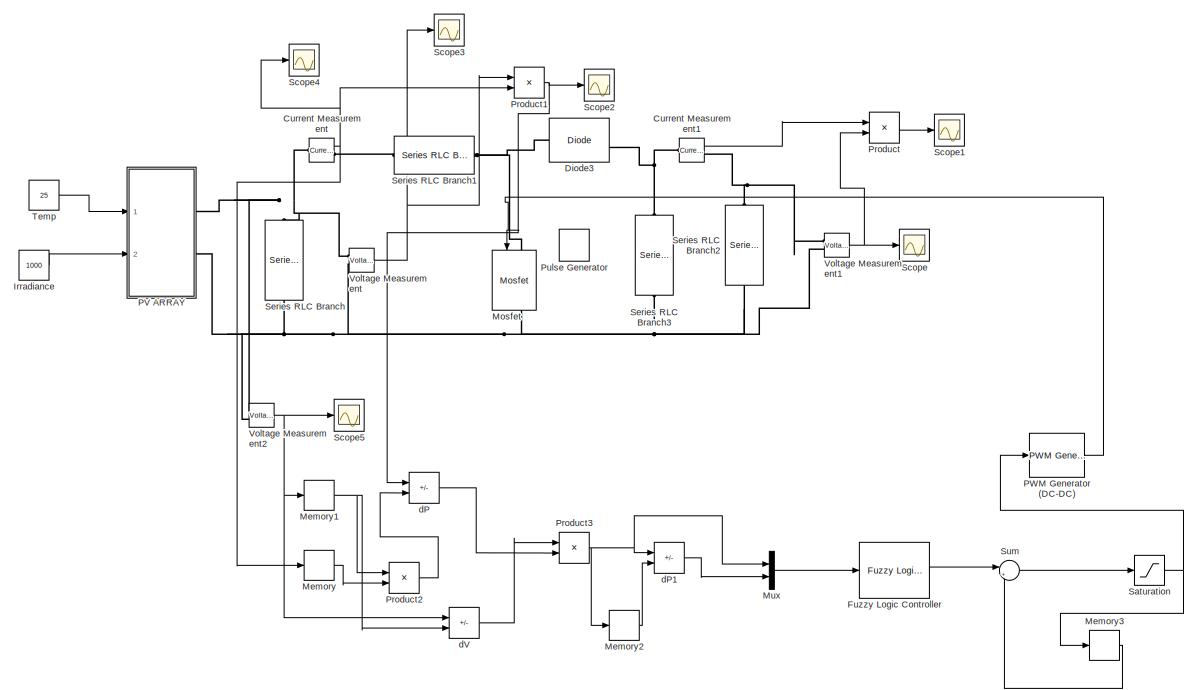
[diagram: root canvas - part 1/2, top left region]
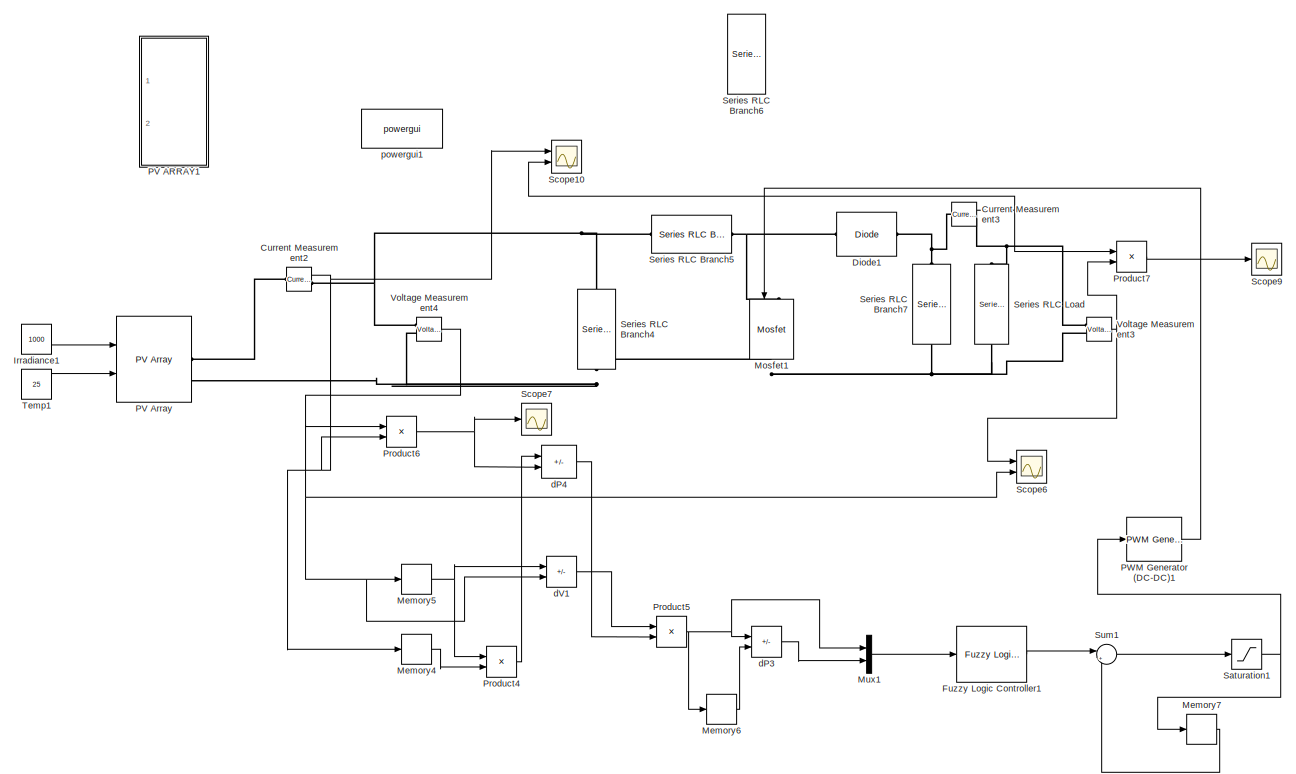
[diagram: root canvas - part 2/2, bottom center region]
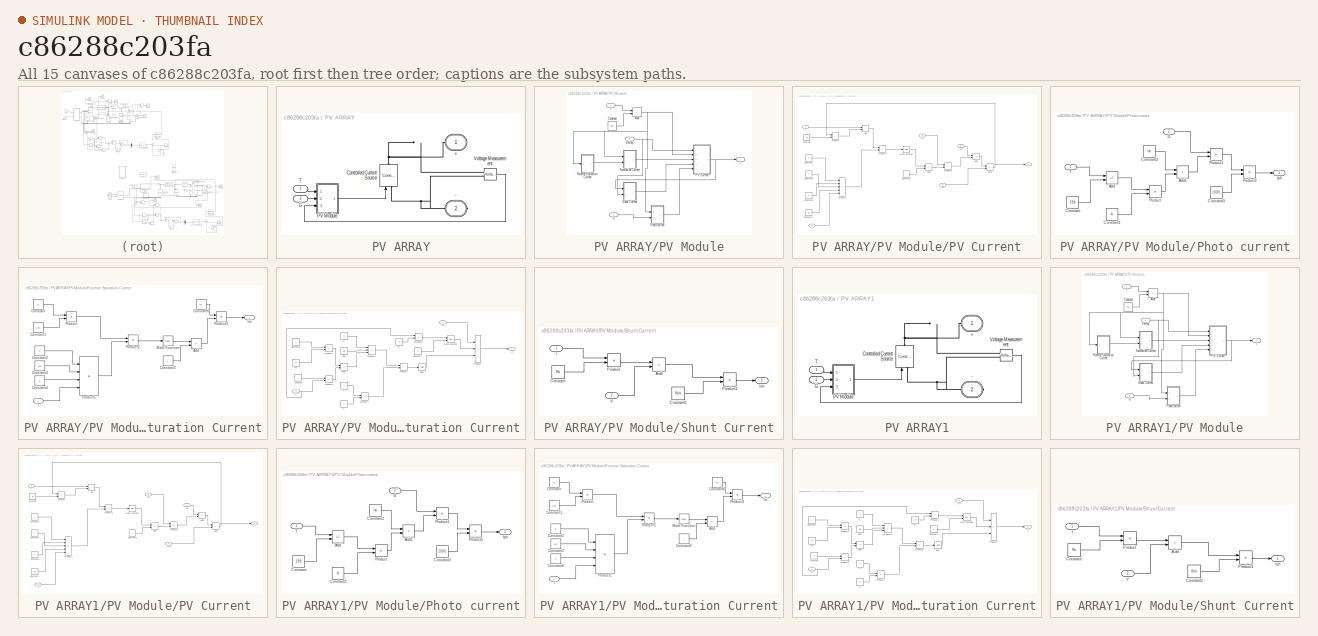
[diagram: thumbnail index - all 15 canvases of the model, root first then tree order]
MODEL slx_c86288c203fa
KIND model
CONFIG AbsTol = auto
CONFIG EnableMultiTasking = off
CONFIG FixedStep = 1e-6
CONFIG MaxStep = auto
CONFIG MinStep = auto
CONFIG RelTol = 1e-3
CONFIG SampleTimeConstraint = Unconstrained
CONFIG Solver = FixedStepAuto
CONFIG SolverName = FixedStepAuto
CONFIG StartTime = 0.0
CONFIG StopTime = 0.5
BLOCK [Reference] Current Measurement  REF=powerlib/Measurements/Current Measurement
  Commented = on
  Ports = [0, 1, 0, 0, 0, 1, 1]
  SourceBlock = powerlib/Measurements/Current Measurement
  SourceProductBaseCode = PS
  SourceType = Current Measurement
  UserDataPersistent = on
BLOCK [Reference] Current Measurement1  REF=powerlib/Measurements/Current Measurement
  Commented = on
  Ports = [0, 1, 0, 0, 0, 1, 1]
  SourceBlock = powerlib/Measurements/Current Measurement
  SourceProductBaseCode = PS
  SourceType = Current Measurement
  UserDataPersistent = on
BLOCK [Reference] Current Measurement2  REF=powerlib/Measurements/Current Measurement
  Ports = [0, 1, 0, 0, 0, 1, 1]
  SourceBlock = powerlib/Measurements/Current Measurement
  SourceProductBaseCode = PS
  SourceType = Current Measurement
  UserDataPersistent = on
BLOCK [Reference] Current Measurement3  REF=powerlib/Measurements/Current Measurement
  Ports = [0, 1, 0, 0, 0, 1, 1]
  SourceBlock = powerlib/Measurements/Current Measurement
  SourceProductBaseCode = PS
  SourceType = Current Measurement
  UserDataPersistent = on
BLOCK [Reference] Diode1  REF=powerlib/Power
Electronics/Diode
  Ports = [0, 0, 0, 0, 0, 1, 1]
  SourceBlock = powerlib/Power\nElectronics/Diode
  SourceProductBaseCode = PS
  SourceType = Diode
BLOCK [Reference] Diode3  REF=powerlib/Power
Electronics/Diode
  Commented = on
  Ports = [0, 1, 0, 0, 0, 1, 1]
  SourceBlock = powerlib/Power\nElectronics/Diode
  SourceProductBaseCode = PS
  SourceType = Diode
BLOCK [Reference] Fuzzy Logic Controller  REF=fuzblock/Fuzzy Logic   (lib defined in mdl_858b3b3e7478)
Controller
  Commented = on
  Ports = [1, 1]
  SourceBlock = fuzblock/Fuzzy Logic \nController
  SourceProductBaseCode = FL
  SourceType = Fuzzy Inference System
BLOCK [Reference] Fuzzy Logic Controller1  REF=fuzblock/Fuzzy Logic   (lib defined in mdl_858b3b3e7478)
Controller
  Ports = [1, 1]
  SourceBlock = fuzblock/Fuzzy Logic \nController
  SourceProductBaseCode = FL
  SourceType = Fuzzy Inference System
BLOCK [Constant] Irradiance
  Commented = on
  Value = 1000
BLOCK [Constant] Irradiance1
  Value = 1000
BLOCK [Memory] Memory
  Commented = on
BLOCK [Memory] Memory1
  Commented = on
BLOCK [Memory] Memory2
  Commented = on
BLOCK [Memory] Memory3
  Commented = on
BLOCK [Memory] Memory4
BLOCK [Memory] Memory5
BLOCK [Memory] Memory6
BLOCK [Memory] Memory7
BLOCK [Reference] Mosfet  REF=powerlib/Power
Electronics/Mosfet
  Commented = on
  NameLocation = left
  Ports = [1, 1, 0, 0, 0, 1, 1]
  SourceBlock = powerlib/Power\nElectronics/Mosfet
  SourceProductBaseCode = PS
  SourceType = Mosfet
BLOCK [Reference] Mosfet1  REF=powerlib/Power
Electronics/Mosfet
  NameLocation = left
  Ports = [1, 0, 0, 0, 0, 1, 1]
  SourceBlock = powerlib/Power\nElectronics/Mosfet
  SourceProductBaseCode = PS
  SourceType = Mosfet
BLOCK [Mux] Mux
  Commented = on
  DisplayOption = bar
  Inputs = 2
  Ports = [2, 1]
BLOCK [Mux] Mux1
  DisplayOption = bar
  Inputs = 2
  Ports = [2, 1]
BLOCK [SubSystem] PV ARRAY
  Commented = on
  Ports = [2, 0, 0, 0, 0, 0, 2]
  RequestExecContextInheritance = off
BLOCK [PMIOPort] PV ARRAY/+
  NameLocation = top
  Side = Right
BLOCK [PMIOPort] PV ARRAY/-
  NameLocation = top
  Port = 2
  Side = Right
BLOCK [Reference] PV ARRAY/Controlled Current Source  REF=powerlib/Electrical
Sources/Controlled Current Source
  NameLocation = right
  Ports = [1, 0, 0, 0, 0, 1, 1]
  SourceBlock = powerlib/Electrical\nSources/Controlled Current Source
  SourceProductBaseCode = PS
  SourceType = Controlled Current Source
BLOCK [Inport] PV ARRAY/G
  Port = 2
BLOCK [SubSystem] PV ARRAY/PV Module
  Ports = [3, 1]
  RequestExecContextInheritance = off
BLOCK [Sum] PV ARRAY/PV Module/Add
  IconShape = rectangular
  Ports = [2, 1]
BLOCK [Constant] PV ARRAY/PV Module/Constant
  Value = 273
BLOCK [Inport] PV ARRAY/PV Module/G
  Port = 2
BLOCK [Outport] PV ARRAY/PV Module/I
BLOCK [SubSystem] PV ARRAY/PV Module/PV Current
  Ports = [5, 1]
  RequestExecContextInheritance = off
BLOCK [Sum] PV ARRAY/PV Module/PV Current/Add
  IconShape = rectangular
  Ports = [2, 1]
BLOCK [Sum] PV ARRAY/PV Module/PV Current/Add1
  IconShape = rectangular
  Inputs = +-
  Ports = [2, 1]
BLOCK [Sum] PV ARRAY/PV Module/PV Current/Add2
  IconShape = rectangular
  Inputs = +-
  Ports = [2, 1]
BLOCK [Sum] PV ARRAY/PV Module/PV Current/Add3
  IconShape = rectangular
  Inputs = +-
  Ports = [2, 1]
BLOCK [Constant] PV ARRAY/PV Module/PV Current/Constant
  Value = Rs
BLOCK [Constant] PV ARRAY/PV Module/PV Current/Constant1
  Value = q
BLOCK [Constant] PV ARRAY/PV Module/PV Current/Constant2
  Value = n
BLOCK [Constant] PV ARRAY/PV Module/PV Current/Constant3
  Value = k
BLOCK [Constant] PV ARRAY/PV Module/PV Current/Constant4
  Value = Ns
BLOCK [Constant] PV ARRAY/PV Module/PV Current/Constant5
BLOCK [Outport] PV ARRAY/PV Module/PV Current/I
BLOCK [Inport] PV ARRAY/PV Module/PV Current/I0
  Port = 3
BLOCK [Inport] PV ARRAY/PV Module/PV Current/Iph
  Port = 5
BLOCK [Inport] PV ARRAY/PV Module/PV Current/Ish
  Port = 4
BLOCK [Math] PV ARRAY/PV Module/PV Current/Math Function
  Ports = [1, 1]
BLOCK [Product] PV ARRAY/PV Module/PV Current/Product
  Ports = [2, 1]
BLOCK [Product] PV ARRAY/PV Module/PV Current/Product1
  Inputs = *////
  Ports = [5, 1]
BLOCK [Product] PV ARRAY/PV Module/PV Current/Product2
  Ports = [2, 1]
BLOCK [Product] PV ARRAY/PV Module/PV Current/Product3
  Ports = [2, 1]
BLOCK [Inport] PV ARRAY/PV Module/PV Current/T
  Port = 2
BLOCK [Inport] PV ARRAY/PV Module/PV Current/V
BLOCK [SubSystem] PV ARRAY/PV Module/Photo current
  Ports = [2, 1]
  RequestExecContextInheritance = off
BLOCK [Sum] PV ARRAY/PV Module/Photo current/Add
  IconShape = rectangular
  Inputs = +-
  Ports = [2, 1]
BLOCK [Sum] PV ARRAY/PV Module/Photo current/Add1
  IconShape = rectangular
  Ports = [2, 1]
BLOCK [Constant] PV ARRAY/PV Module/Photo current/Constant
  Value = 298
BLOCK [Constant] PV ARRAY/PV Module/Photo current/Constant1
  Value = ki
BLOCK [Constant] PV ARRAY/PV Module/Photo current/Constant2
  Value = Isc
BLOCK [Constant] PV ARRAY/PV Module/Photo current/Constant3
  Value = 1000
BLOCK [Inport] PV ARRAY/PV Module/Photo current/G
  Port = 2
BLOCK [Outport] PV ARRAY/PV Module/Photo current/Iph
BLOCK [Product] PV ARRAY/PV Module/Photo current/Product
  Ports = [2, 1]
BLOCK [Product] PV ARRAY/PV Module/Photo current/Product1
  Ports = [2, 1]
BLOCK [Product] PV ARRAY/PV Module/Photo current/Product2
  Inputs = */
  Ports = [2, 1]
BLOCK [Inport] PV ARRAY/PV Module/Photo current/T
BLOCK [SubSystem] PV ARRAY/PV Module/Reverse Saturation Current
  Ports = [1, 1]
  RequestExecContextInheritance = off
BLOCK [Sum] PV ARRAY/PV Module/Reverse Saturation Current/Add
  IconShape = rectangular
  Inputs = +-
  Ports = [2, 1]
BLOCK [Constant] PV ARRAY/PV Module/Reverse Saturation Current/Constant
  Value = q
BLOCK [Constant] PV ARRAY/PV Module/Reverse Saturation Current/Constant1
  Value = Voc
BLOCK [Constant] PV ARRAY/PV Module/Reverse Saturation Current/Constant2
  Value = n
BLOCK [Constant] PV ARRAY/PV Module/Reverse Saturation Current/Constant3
  Value = Ns
BLOCK [Constant] PV ARRAY/PV Module/Reverse Saturation Current/Constant4
  Value = k
BLOCK [Constant] PV ARRAY/PV Module/Reverse Saturation Current/Constant5
BLOCK [Constant] PV ARRAY/PV Module/Reverse Saturation Current/Constant6
  Value = Isc
BLOCK [Outport] PV ARRAY/PV Module/Reverse Saturation Current/Irs
BLOCK [Math] PV ARRAY/PV Module/Reverse Saturation Current/Math Function
  Ports = [1, 1]
BLOCK [Product] PV ARRAY/PV Module/Reverse Saturation Current/Product
  Ports = [2, 1]
BLOCK [Product] PV ARRAY/PV Module/Reverse Saturation Current/Product1
  Inputs = 4
  Ports = [4, 1]
BLOCK [Product] PV ARRAY/PV Module/Reverse Saturation Current/Product2
  Inputs = */
  Ports = [2, 1]
BLOCK [Product] PV ARRAY/PV Module/Reverse Saturation Current/Product3
  Inputs = */
  Ports = [2, 1]
BLOCK [Inport] PV ARRAY/PV Module/Reverse Saturation Current/T
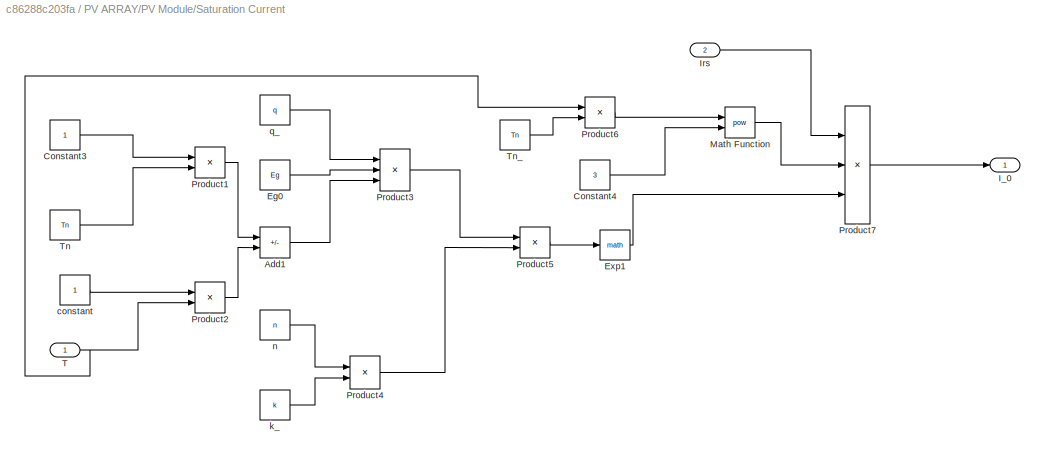
BLOCK [SubSystem] PV ARRAY/PV Module/Saturation Current
  Ports = [2, 1]
  RequestExecContextInheritance = off
BLOCK [Sum] PV ARRAY/PV Module/Saturation Current/Add1
  IconShape = rectangular
  Inputs = +-
  Ports = [2, 1]
BLOCK [Constant] PV ARRAY/PV Module/Saturation Current/Constant3
BLOCK [Constant] PV ARRAY/PV Module/Saturation Current/Constant4
  Value = 3
BLOCK [Constant] PV ARRAY/PV Module/Saturation Current/Eg0
  Value = Eg
BLOCK [Math] PV ARRAY/PV Module/Saturation Current/Exp1
  Ports = [1, 1]
BLOCK [Outport] PV ARRAY/PV Module/Saturation Current/I_0
BLOCK [Inport] PV ARRAY/PV Module/Saturation Current/Irs
  Port = 2
BLOCK [Math] PV ARRAY/PV Module/Saturation Current/Math Function
  Operator = pow
  Ports = [2, 1]
BLOCK [Product] PV ARRAY/PV Module/Saturation Current/Product1
  Inputs = */
  Ports = [2, 1]
BLOCK [Product] PV ARRAY/PV Module/Saturation Current/Product2
  Inputs = */
  Ports = [2, 1]
BLOCK [Product] PV ARRAY/PV Module/Saturation Current/Product3
  Inputs = ***
  Ports = [3, 1]
BLOCK [Product] PV ARRAY/PV Module/Saturation Current/Product4
  Inputs = **
  Ports = [2, 1]
BLOCK [Product] PV ARRAY/PV Module/Saturation Current/Product5
  Inputs = */
  Ports = [2, 1]
BLOCK [Product] PV ARRAY/PV Module/Saturation Current/Product6
  Inputs = */
  Ports = [2, 1]
BLOCK [Product] PV ARRAY/PV Module/Saturation Current/Product7
  Inputs = 3
  Ports = [3, 1]
BLOCK [Inport] PV ARRAY/PV Module/Saturation Current/T
BLOCK [Constant] PV ARRAY/PV Module/Saturation Current/Tn
  Value = Tn
BLOCK [Constant] PV ARRAY/PV Module/Saturation Current/Tn_
  Value = Tn
BLOCK [Constant] PV ARRAY/PV Module/Saturation Current/constant
BLOCK [Constant] PV ARRAY/PV Module/Saturation Current/k_
  Value = k
BLOCK [Constant] PV ARRAY/PV Module/Saturation Current/n
  Value = n
BLOCK [Constant] PV ARRAY/PV Module/Saturation Current/q_
  Value = q
BLOCK [SubSystem] PV ARRAY/PV Module/Shunt Current
  Ports = [2, 1]
  RequestExecContextInheritance = off
BLOCK [Sum] PV ARRAY/PV Module/Shunt Current/Add
  IconShape = rectangular
  Ports = [2, 1]
BLOCK [Constant] PV ARRAY/PV Module/Shunt Current/Constant
  Value = Rs
BLOCK [Constant] PV ARRAY/PV Module/Shunt Current/Constant1
  Value = Rsh
BLOCK [Inport] PV ARRAY/PV Module/Shunt Current/I
BLOCK [Outport] PV ARRAY/PV Module/Shunt Current/Ish
BLOCK [Product] PV ARRAY/PV Module/Shunt Current/Product
  Ports = [2, 1]
BLOCK [Product] PV ARRAY/PV Module/Shunt Current/Product1
  Inputs = */
  Ports = [2, 1]
BLOCK [Inport] PV ARRAY/PV Module/Shunt Current/V
  Port = 2
BLOCK [Inport] PV ARRAY/PV Module/T
BLOCK [Inport] PV ARRAY/PV Module/Varray
  Port = 3
BLOCK [Inport] PV ARRAY/T
BLOCK [Reference] PV ARRAY/Voltage Measurement  REF=powerlib/Measurements/Voltage Measurement
  Ports = [0, 1, 0, 0, 0, 2]
  SourceBlock = powerlib/Measurements/Voltage Measurement
  SourceProductBaseCode = PS
  SourceType = Voltage Measurement
  UserDataPersistent = on
BLOCK [SubSystem] PV ARRAY1
  Commented = on
  Ports = [2, 0, 0, 0, 0, 0, 2]
  RequestExecContextInheritance = off
BLOCK [PMIOPort] PV ARRAY1/+
  NameLocation = top
  Side = Right
BLOCK [PMIOPort] PV ARRAY1/-
  NameLocation = top
  Port = 2
  Side = Right
BLOCK [Reference] PV ARRAY1/Controlled Current Source  REF=powerlib/Electrical
Sources/Controlled Current Source
  NameLocation = right
  Ports = [1, 0, 0, 0, 0, 1, 1]
  SourceBlock = powerlib/Electrical\nSources/Controlled Current Source
  SourceProductBaseCode = PS
  SourceType = Controlled Current Source
BLOCK [Inport] PV ARRAY1/G
  Port = 2
BLOCK [SubSystem] PV ARRAY1/PV Module
  Ports = [3, 1]
  RequestExecContextInheritance = off
BLOCK [Sum] PV ARRAY1/PV Module/Add
  IconShape = rectangular
  Ports = [2, 1]
BLOCK [Constant] PV ARRAY1/PV Module/Constant
  Value = 273
BLOCK [Inport] PV ARRAY1/PV Module/G
  Port = 2
BLOCK [Outport] PV ARRAY1/PV Module/I
BLOCK [SubSystem] PV ARRAY1/PV Module/PV Current
  Ports = [5, 1]
  RequestExecContextInheritance = off
BLOCK [Sum] PV ARRAY1/PV Module/PV Current/Add
  IconShape = rectangular
  Ports = [2, 1]
BLOCK [Sum] PV ARRAY1/PV Module/PV Current/Add1
  IconShape = rectangular
  Inputs = +-
  Ports = [2, 1]
BLOCK [Sum] PV ARRAY1/PV Module/PV Current/Add2
  IconShape = rectangular
  Inputs = +-
  Ports = [2, 1]
BLOCK [Sum] PV ARRAY1/PV Module/PV Current/Add3
  IconShape = rectangular
  Inputs = +-
  Ports = [2, 1]
BLOCK [Constant] PV ARRAY1/PV Module/PV Current/Constant
  Value = Rs
BLOCK [Constant] PV ARRAY1/PV Module/PV Current/Constant1
  Value = q
BLOCK [Constant] PV ARRAY1/PV Module/PV Current/Constant2
  Value = n
BLOCK [Constant] PV ARRAY1/PV Module/PV Current/Constant3
  Value = k
BLOCK [Constant] PV ARRAY1/PV Module/PV Current/Constant4
  Value = Ns
BLOCK [Constant] PV ARRAY1/PV Module/PV Current/Constant5
BLOCK [Outport] PV ARRAY1/PV Module/PV Current/I
BLOCK [Inport] PV ARRAY1/PV Module/PV Current/I0
  Port = 3
BLOCK [Inport] PV ARRAY1/PV Module/PV Current/Iph
  Port = 5
BLOCK [Inport] PV ARRAY1/PV Module/PV Current/Ish
  Port = 4
BLOCK [Math] PV ARRAY1/PV Module/PV Current/Math Function
  Ports = [1, 1]
BLOCK [Product] PV ARRAY1/PV Module/PV Current/Product
  Ports = [2, 1]
BLOCK [Product] PV ARRAY1/PV Module/PV Current/Product1
  Inputs = *////
  Ports = [5, 1]
BLOCK [Product] PV ARRAY1/PV Module/PV Current/Product2
  Ports = [2, 1]
BLOCK [Product] PV ARRAY1/PV Module/PV Current/Product3
  Ports = [2, 1]
BLOCK [Inport] PV ARRAY1/PV Module/PV Current/T
  Port = 2
BLOCK [Inport] PV ARRAY1/PV Module/PV Current/V
BLOCK [SubSystem] PV ARRAY1/PV Module/Photo current
  Ports = [2, 1]
  RequestExecContextInheritance = off
BLOCK [Sum] PV ARRAY1/PV Module/Photo current/Add
  IconShape = rectangular
  Inputs = +-
  Ports = [2, 1]
BLOCK [Sum] PV ARRAY1/PV Module/Photo current/Add1
  IconShape = rectangular
  Ports = [2, 1]
BLOCK [Constant] PV ARRAY1/PV Module/Photo current/Constant
  Value = 298
BLOCK [Constant] PV ARRAY1/PV Module/Photo current/Constant1
  Value = ki
BLOCK [Constant] PV ARRAY1/PV Module/Photo current/Constant2
  Value = Isc
BLOCK [Constant] PV ARRAY1/PV Module/Photo current/Constant3
  Value = 1000
BLOCK [Inport] PV ARRAY1/PV Module/Photo current/G
  Port = 2
BLOCK [Outport] PV ARRAY1/PV Module/Photo current/Iph
BLOCK [Product] PV ARRAY1/PV Module/Photo current/Product
  Ports = [2, 1]
BLOCK [Product] PV ARRAY1/PV Module/Photo current/Product1
  Ports = [2, 1]
BLOCK [Product] PV ARRAY1/PV Module/Photo current/Product2
  Inputs = */
  Ports = [2, 1]
BLOCK [Inport] PV ARRAY1/PV Module/Photo current/T
BLOCK [SubSystem] PV ARRAY1/PV Module/Reverse Saturation Current
  Ports = [1, 1]
  RequestExecContextInheritance = off
BLOCK [Sum] PV ARRAY1/PV Module/Reverse Saturation Current/Add
  IconShape = rectangular
  Inputs = +-
  Ports = [2, 1]
BLOCK [Constant] PV ARRAY1/PV Module/Reverse Saturation Current/Constant
  Value = q
BLOCK [Constant] PV ARRAY1/PV Module/Reverse Saturation Current/Constant1
  Value = Voc
BLOCK [Constant] PV ARRAY1/PV Module/Reverse Saturation Current/Constant2
  Value = n
BLOCK [Constant] PV ARRAY1/PV Module/Reverse Saturation Current/Constant3
  Value = Ns
BLOCK [Constant] PV ARRAY1/PV Module/Reverse Saturation Current/Constant4
  Value = k
BLOCK [Constant] PV ARRAY1/PV Module/Reverse Saturation Current/Constant5
BLOCK [Constant] PV ARRAY1/PV Module/Reverse Saturation Current/Constant6
  Value = Isc
BLOCK [Outport] PV ARRAY1/PV Module/Reverse Saturation Current/Irs
BLOCK [Math] PV ARRAY1/PV Module/Reverse Saturation Current/Math Function
  Ports = [1, 1]
BLOCK [Product] PV ARRAY1/PV Module/Reverse Saturation Current/Product
  Ports = [2, 1]
BLOCK [Product] PV ARRAY1/PV Module/Reverse Saturation Current/Product1
  Inputs = 4
  Ports = [4, 1]
BLOCK [Product] PV ARRAY1/PV Module/Reverse Saturation Current/Product2
  Inputs = */
  Ports = [2, 1]
BLOCK [Product] PV ARRAY1/PV Module/Reverse Saturation Current/Product3
  Inputs = */
  Ports = [2, 1]
BLOCK [Inport] PV ARRAY1/PV Module/Reverse Saturation Current/T
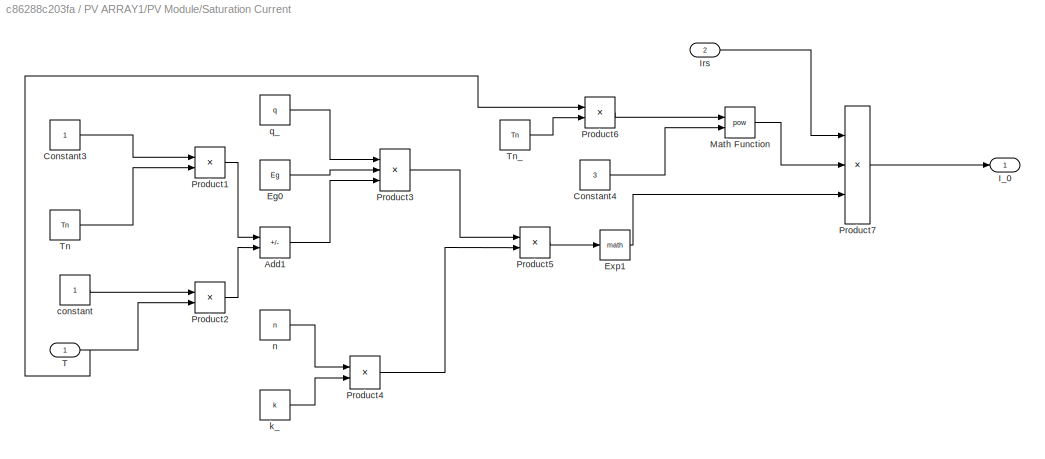
BLOCK [SubSystem] PV ARRAY1/PV Module/Saturation Current
  Ports = [2, 1]
  RequestExecContextInheritance = off
BLOCK [Sum] PV ARRAY1/PV Module/Saturation Current/Add1
  IconShape = rectangular
  Inputs = +-
  Ports = [2, 1]
BLOCK [Constant] PV ARRAY1/PV Module/Saturation Current/Constant3
BLOCK [Constant] PV ARRAY1/PV Module/Saturation Current/Constant4
  Value = 3
BLOCK [Constant] PV ARRAY1/PV Module/Saturation Current/Eg0
  Value = Eg
BLOCK [Math] PV ARRAY1/PV Module/Saturation Current/Exp1
  Ports = [1, 1]
BLOCK [Outport] PV ARRAY1/PV Module/Saturation Current/I_0
BLOCK [Inport] PV ARRAY1/PV Module/Saturation Current/Irs
  Port = 2
BLOCK [Math] PV ARRAY1/PV Module/Saturation Current/Math Function
  Operator = pow
  Ports = [2, 1]
BLOCK [Product] PV ARRAY1/PV Module/Saturation Current/Product1
  Inputs = */
  Ports = [2, 1]
BLOCK [Product] PV ARRAY1/PV Module/Saturation Current/Product2
  Inputs = */
  Ports = [2, 1]
BLOCK [Product] PV ARRAY1/PV Module/Saturation Current/Product3
  Inputs = ***
  Ports = [3, 1]
BLOCK [Product] PV ARRAY1/PV Module/Saturation Current/Product4
  Inputs = **
  Ports = [2, 1]
BLOCK [Product] PV ARRAY1/PV Module/Saturation Current/Product5
  Inputs = */
  Ports = [2, 1]
BLOCK [Product] PV ARRAY1/PV Module/Saturation Current/Product6
  Inputs = */
  Ports = [2, 1]
BLOCK [Product] PV ARRAY1/PV Module/Saturation Current/Product7
  Inputs = 3
  Ports = [3, 1]
BLOCK [Inport] PV ARRAY1/PV Module/Saturation Current/T
BLOCK [Constant] PV ARRAY1/PV Module/Saturation Current/Tn
  Value = Tn
BLOCK [Constant] PV ARRAY1/PV Module/Saturation Current/Tn_
  Value = Tn
BLOCK [Constant] PV ARRAY1/PV Module/Saturation Current/constant
BLOCK [Constant] PV ARRAY1/PV Module/Saturation Current/k_
  Value = k
BLOCK [Constant] PV ARRAY1/PV Module/Saturation Current/n
  Value = n
BLOCK [Constant] PV ARRAY1/PV Module/Saturation Current/q_
  Value = q
BLOCK [SubSystem] PV ARRAY1/PV Module/Shunt Current
  Ports = [2, 1]
  RequestExecContextInheritance = off
BLOCK [Sum] PV ARRAY1/PV Module/Shunt Current/Add
  IconShape = rectangular
  Ports = [2, 1]
BLOCK [Constant] PV ARRAY1/PV Module/Shunt Current/Constant
  Value = Rs
BLOCK [Constant] PV ARRAY1/PV Module/Shunt Current/Constant1
  Value = Rsh
BLOCK [Inport] PV ARRAY1/PV Module/Shunt Current/I
BLOCK [Outport] PV ARRAY1/PV Module/Shunt Current/Ish
BLOCK [Product] PV ARRAY1/PV Module/Shunt Current/Product
  Ports = [2, 1]
BLOCK [Product] PV ARRAY1/PV Module/Shunt Current/Product1
  Inputs = */
  Ports = [2, 1]
BLOCK [Inport] PV ARRAY1/PV Module/Shunt Current/V
  Port = 2
BLOCK [Inport] PV ARRAY1/PV Module/T
BLOCK [Inport] PV ARRAY1/PV Module/Varray
  Port = 3
BLOCK [Inport] PV ARRAY1/T
BLOCK [Reference] PV ARRAY1/Voltage Measurement  REF=powerlib/Measurements/Voltage Measurement
  Ports = [0, 1, 0, 0, 0, 2]
  SourceBlock = powerlib/Measurements/Voltage Measurement
  SourceProductBaseCode = PS
  SourceType = Voltage Measurement
  UserDataPersistent = on
BLOCK [Reference] PV Array  REF=re_lib/Solar/PV Array
  Ports = [2, 1, 0, 0, 0, 0, 2]
  SourceBlock = re_lib/Solar/PV Array
  SourceProductBaseCode = PS
  SourceType = PV array
BLOCK [Reference] PWM Generator (DC-DC)  REF=powerlib_meascontrol/Pulse & Signal
Generators/PWM Generator
(DC-DC)
  Commented = on
  Ports = [1, 1]
  SourceBlock = powerlib_meascontrol/Pulse & Signal\nGenerators/PWM Generator\n(DC-DC)
  SourceProductBaseCode = PS
  SourceType = PWM Generator (DC-DC)
BLOCK [Reference] PWM Generator (DC-DC)1  REF=powerlib_meascontrol/Pulse & Signal
Generators/PWM Generator
(DC-DC)
  Ports = [1, 1]
  SourceBlock = powerlib_meascontrol/Pulse & Signal\nGenerators/PWM Generator\n(DC-DC)
  SourceProductBaseCode = PS
  SourceType = PWM Generator (DC-DC)
BLOCK [Product] Product
  Commented = on
  Ports = [2, 1]
BLOCK [Product] Product1
  Commented = on
  Ports = [2, 1]
BLOCK [Product] Product2
  Commented = on
  Ports = [2, 1]
BLOCK [Product] Product3
  Commented = on
  Inputs = */
  Ports = [2, 1]
BLOCK [Product] Product4
  Ports = [2, 1]
BLOCK [Product] Product5
  Inputs = */
  Ports = [2, 1]
BLOCK [Product] Product6
  Ports = [2, 1]
BLOCK [Product] Product7
  Ports = [2, 1]
BLOCK [DiscretePulseGenerator] Pulse Generator
  Commented = on
  Period = 0.00004
  Ports = [0, 1]
  PulseType = Time based
  PulseWidth = 10
BLOCK [Saturate] Saturation
  Commented = on
BLOCK [Saturate] Saturation1
BLOCK [Scope] Scope
  Commented = on
  Floating = off
  NumInputPorts = 1
  Ports = [1]
  ScopeSpecificationString = Simulink.scopes.TimeScopeBlockCfg('CurrentConfiguration', extmgr.ConfigurationSet(extmgr.Configuration('Core','General UI',true),extmgr.Configuration('Core','Source UI',true),extmgr.Configuration('Sources','WiredSimulink',true),extmgr.Configuration('Visuals','Time Domain',true,'SerializedDisplays',{struct('MinYLimReal','-5.25407','MaxYLimReal','47.28664','YLabelReal','','MinYLimMag','0.00000','Max...<+1696ch>
BLOCK [Scope] Scope1
  Commented = on
  Floating = off
  NumInputPorts = 1
  Ports = [1]
  ScopeSpecificationString = Simulink.scopes.TimeScopeBlockCfg('CurrentConfiguration', extmgr.ConfigurationSet(extmgr.Configuration('Core','General UI',true),extmgr.Configuration('Core','Source UI',true),extmgr.Configuration('Sources','WiredSimulink',true,'DataLoggingVariableName','ScopeData1'),extmgr.Configuration('Visuals','Time Domain',true,'SerializedDisplays',{struct('MinYLimReal','-24.03524','MaxYLimReal','216.31717','Y...<+1511ch>
BLOCK [Scope] Scope10
  Floating = off
  NumInputPorts = 2
  Ports = [2]
  ScopeSpecificationString = Simulink.scopes.TimeScopeBlockCfg('CurrentConfiguration', extmgr.ConfigurationSet(extmgr.Configuration('Core','General UI',true),extmgr.Configuration('Core','Source UI',true),extmgr.Configuration('Sources','WiredSimulink',true,'DataLoggingVariableName','ScopeData3'),extmgr.Configuration('Visuals','Time Domain',true,'SerializedDisplays',{struct('MinYLimReal','6.87034','MaxYLimReal','8.37868','YLabe...<+2049ch>
BLOCK [Scope] Scope2
  Commented = on
  Floating = off
  NumInputPorts = 1
  Ports = [1]
  ScopeSpecificationString = Simulink.scopes.TimeScopeBlockCfg('CurrentConfiguration', extmgr.ConfigurationSet(extmgr.Configuration('Core','General UI',true),extmgr.Configuration('Core','Source UI',true),extmgr.Configuration('Sources','WiredSimulink',true,'DataLoggingVariableName','ScopeData2'),extmgr.Configuration('Visuals','Time Domain',true,'SerializedDisplays',{struct('MinYLimReal','-24.25914','MaxYLimReal','218.33223','Y...<+1471ch>
BLOCK [Scope] Scope3
  Commented = on
  Floating = off
  NumInputPorts = 1
  Ports = [1]
  ScopeSpecificationString = Simulink.scopes.TimeScopeBlockCfg('CurrentConfiguration', extmgr.ConfigurationSet(extmgr.Configuration('Core','General UI',true),extmgr.Configuration('Core','Source UI',true),extmgr.Configuration('Sources','WiredSimulink',true,'DataLoggingVariableName','ScopeData3'),extmgr.Configuration('Visuals','Time Domain',true,'SerializedDisplays',{struct('MinYLimReal','-4.16635','MaxYLimReal','37.49718','YLa...<+1476ch>
BLOCK [Scope] Scope4
  Commented = on
  Floating = off
  NumInputPorts = 1
  Ports = [1]
  ScopeSpecificationString = Simulink.scopes.TimeScopeBlockCfg('CurrentConfiguration', extmgr.ConfigurationSet(extmgr.Configuration('Core','General UI',true),extmgr.Configuration('Core','Source UI',true),extmgr.Configuration('Sources','WiredSimulink',true,'DataLoggingVariableName','ScopeData4'),extmgr.Configuration('Visuals','Time Domain',true,'SerializedDisplays',{struct('MinYLimReal','-0.87121','MaxYLimReal','7.84091','YLab...<+1472ch>
BLOCK [Scope] Scope5
  Commented = on
  Floating = off
  NumInputPorts = 1
  Ports = [1]
  ScopeSpecificationString = Simulink.scopes.TimeScopeBlockCfg('CurrentConfiguration', extmgr.ConfigurationSet(extmgr.Configuration('Core','General UI',true),extmgr.Configuration('Core','Source UI',true),extmgr.Configuration('Sources','WiredSimulink',true,'DataLoggingVariableName','ScopeData1'),extmgr.Configuration('Visuals','Time Domain',true,'SerializedDisplays',{struct('MinYLimReal','-4.16635','MaxYLimReal','37.49718','YLa...<+1441ch>
BLOCK [Scope] Scope6
  Floating = off
  NumInputPorts = 2
  Ports = [2]
  ScopeSpecificationString = Simulink.scopes.TimeScopeBlockCfg('CurrentConfiguration', extmgr.ConfigurationSet(extmgr.Configuration('Core','General UI',true),extmgr.Configuration('Core','Source UI',true),extmgr.Configuration('Sources','WiredSimulink',true,'DataLoggingVariableName','ScopeData2'),extmgr.Configuration('Visuals','Time Domain',true,'SerializedDisplays',{struct('MinYLimReal','-4.57001','MaxYLimReal','41.13052','YLa...<+2139ch>
BLOCK [Scope] Scope7
  Floating = off
  NumInputPorts = 1
  Ports = [1]
  ScopeSpecificationString = Simulink.scopes.TimeScopeBlockCfg('CurrentConfiguration', extmgr.ConfigurationSet(extmgr.Configuration('Core','General UI',true),extmgr.Configuration('Core','Source UI',true),extmgr.Configuration('Sources','WiredSimulink',true,'DataLoggingVariableName','ScopeData3'),extmgr.Configuration('Visuals','Time Domain',true,'SerializedDisplays',{struct('MinYLimReal','-24.58688','MaxYLimReal','225.51299','Y...<+1749ch>
BLOCK [Scope] Scope9
  Floating = off
  NumInputPorts = 1
  Ports = [1]
  ScopeSpecificationString = Simulink.scopes.TimeScopeBlockCfg('CurrentConfiguration', extmgr.ConfigurationSet(extmgr.Configuration('Core','General UI',true),extmgr.Configuration('Core','Source UI',true),extmgr.Configuration('Sources','WiredSimulink',true,'DataLoggingVariableName','ScopeData2'),extmgr.Configuration('Visuals','Time Domain',true,'SerializedDisplays',{struct('MinYLimReal','122.51812','MaxYLimReal','185.11113','Y...<+1774ch>
BLOCK [Reference] Series RLC Branch  REF=powerlib/Elements/Series RLC Branch
  Commented = on
  NameLocation = left
  Ports = [0, 0, 0, 0, 0, 1, 1]
  SourceBlock = powerlib/Elements/Series RLC Branch
  SourceProductBaseCode = PS
  SourceType = Series RLC Branch
BLOCK [Reference] Series RLC Branch1  REF=powerlib/Elements/Series RLC Branch
  Commented = on
  Ports = [0, 0, 0, 0, 0, 1, 1]
  SourceBlock = powerlib/Elements/Series RLC Branch
  SourceProductBaseCode = PS
  SourceType = Series RLC Branch
BLOCK [Reference] Series RLC Branch2  REF=powerlib/Elements/Series RLC Branch
  Commented = on
  NameLocation = left
  Ports = [0, 0, 0, 0, 0, 1, 1]
  SourceBlock = powerlib/Elements/Series RLC Branch
  SourceProductBaseCode = PS
  SourceType = Series RLC Branch
BLOCK [Reference] Series RLC Branch3  REF=powerlib/Elements/Series RLC Branch
  Commented = on
  NameLocation = left
  Ports = [0, 0, 0, 0, 0, 1, 1]
  SourceBlock = powerlib/Elements/Series RLC Branch
  SourceProductBaseCode = PS
  SourceType = Series RLC Branch
BLOCK [Reference] Series RLC Branch4  REF=powerlib/Elements/Series RLC Branch
  NameLocation = left
  Ports = [0, 0, 0, 0, 0, 1, 1]
  SourceBlock = powerlib/Elements/Series RLC Branch
  SourceProductBaseCode = PS
  SourceType = Series RLC Branch
BLOCK [Reference] Series RLC Branch5  REF=powerlib/Elements/Series RLC Branch
  Ports = [0, 0, 0, 0, 0, 1, 1]
  SourceBlock = powerlib/Elements/Series RLC Branch
  SourceProductBaseCode = PS
  SourceType = Series RLC Branch
BLOCK [Reference] Series RLC Branch6  REF=powerlib/Elements/Series RLC Branch
  Commented = on
  NameLocation = left
  Ports = [0, 0, 0, 0, 0, 1, 1]
  SourceBlock = powerlib/Elements/Series RLC Branch
  SourceProductBaseCode = PS
  SourceType = Series RLC Branch
BLOCK [Reference] Series RLC Branch7  REF=powerlib/Elements/Series RLC Branch
  NameLocation = left
  Ports = [0, 0, 0, 0, 0, 1, 1]
  SourceBlock = powerlib/Elements/Series RLC Branch
  SourceProductBaseCode = PS
  SourceType = Series RLC Branch
BLOCK [Reference] Series RLC Load  REF=powerlib/Elements/Series RLC Load
  AttributesFormatString = \n
  NameLocation = left
  Ports = [0, 0, 0, 0, 0, 1, 1]
  SourceBlock = powerlib/Elements/Series RLC Load
  SourceProductBaseCode = PS
  SourceType = Series RLC Load
BLOCK [Sum] Sum
  Commented = on
  Inputs = |++
  Ports = [2, 1]
BLOCK [Sum] Sum1
  Inputs = |++
  Ports = [2, 1]
BLOCK [Constant] Temp
  Commented = on
  Value = 25
BLOCK [Constant] Temp1
  Value = 25
BLOCK [Reference] Voltage Measurement  REF=powerlib/Measurements/Voltage Measurement
  Commented = on
  Ports = [0, 1, 0, 0, 0, 2]
  SourceBlock = powerlib/Measurements/Voltage Measurement
  SourceProductBaseCode = PS
  SourceType = Voltage Measurement
  UserDataPersistent = on
BLOCK [Reference] Voltage Measurement1  REF=powerlib/Measurements/Voltage Measurement
  Commented = on
  Ports = [0, 1, 0, 0, 0, 2]
  SourceBlock = powerlib/Measurements/Voltage Measurement
  SourceProductBaseCode = PS
  SourceType = Voltage Measurement
  UserDataPersistent = on
BLOCK [Reference] Voltage Measurement2  REF=powerlib/Measurements/Voltage Measurement
  Commented = on
  Ports = [0, 1, 0, 0, 0, 2]
  SourceBlock = powerlib/Measurements/Voltage Measurement
  SourceProductBaseCode = PS
  SourceType = Voltage Measurement
  UserDataPersistent = on
BLOCK [Reference] Voltage Measurement3  REF=powerlib/Measurements/Voltage Measurement
  Ports = [0, 1, 0, 0, 0, 2]
  SourceBlock = powerlib/Measurements/Voltage Measurement
  SourceProductBaseCode = PS
  SourceType = Voltage Measurement
  UserDataPersistent = on
BLOCK [Reference] Voltage Measurement4  REF=powerlib/Measurements/Voltage Measurement
  Ports = [0, 1, 0, 0, 0, 2]
  SourceBlock = powerlib/Measurements/Voltage Measurement
  SourceProductBaseCode = PS
  SourceType = Voltage Measurement
  UserDataPersistent = on
BLOCK [Sum] dP
  Commented = on
  IconShape = rectangular
  Inputs = +-
  Ports = [2, 1]
BLOCK [Sum] dP1
  Commented = on
  IconShape = rectangular
  Inputs = +-
  Ports = [2, 1]
BLOCK [Sum] dP3
  IconShape = rectangular
  Inputs = +-
  Ports = [2, 1]
BLOCK [Sum] dP4
  IconShape = rectangular
  Inputs = +-
  Ports = [2, 1]
BLOCK [Sum] dV
  Commented = on
  IconShape = rectangular
  Inputs = +-
  Ports = [2, 1]
BLOCK [Sum] dV1
  IconShape = rectangular
  Inputs = +-
  Ports = [2, 1]
BLOCK [Reference] powergui1  REF=powerlib/powergui
  Ports = []
  Priority = 1
  SourceBlock = powerlib/powergui
  SourceProductBaseCode = PS
  SourceType = PSB option menu block
LINE Current Measurement1:1 -> Product:1
NET Current Measurement2:1 -> Memory4:1, Product6:2, Scope10:1
NET Current Measurement3:1 -> Product7:1, Scope10:2
NET Current Measurement:1 -> Memory:1, Product1:2, Scope4:1
LINE Fuzzy Logic Controller1:1 -> Sum1:1
LINE Fuzzy Logic Controller:1 -> Sum:1
LINE Irradiance1:1 -> PV Array:1
LINE Irradiance:1 -> PV ARRAY:2
NET Memory1:1 -> Product2:1, dV:2
LINE Memory2:1 -> dP1:2
LINE Memory3:1 -> Sum:2
LINE Memory4:1 -> Product4:2
NET Memory5:1 -> Product4:1, dV1:1
LINE Memory6:1 -> dP3:2
LINE Memory7:1 -> Sum1:2
LINE Memory:1 -> Product2:2
LINE Mux1:1 -> Fuzzy Logic Controller1:1
LINE Mux:1 -> Fuzzy Logic Controller:1
LINE PV ARRAY/G:1 -> PV ARRAY/PV Module:2
NET PV ARRAY/PV Module/Add:1 -> PV ARRAY/PV Module/PV Current:2, PV ARRAY/PV Module/Photo current:1, PV ARRAY/PV Module/Reverse Saturation Current:1, PV ARRAY/PV Module/Saturation Current:1
LINE PV ARRAY/PV Module/Constant:1 -> PV ARRAY/PV Module/Add:2
LINE PV ARRAY/PV Module/G:1 -> PV ARRAY/PV Module/Photo current:2
LINE PV ARRAY/PV Module/PV Current/Add1:1 -> PV ARRAY/PV Module/PV Current/Product3:2
LINE PV ARRAY/PV Module/PV Current/Add2:1 -> PV ARRAY/PV Module/PV Current/Add3:1
NET PV ARRAY/PV Module/PV Current/Add3:1 -> PV ARRAY/PV Module/PV Current/I:1, PV ARRAY/PV Module/PV Current/Product:1
LINE PV ARRAY/PV Module/PV Current/Add:1 -> PV ARRAY/PV Module/PV Current/Product2:1
LINE PV ARRAY/PV Module/PV Current/Constant1:1 -> PV ARRAY/PV Module/PV Current/Product1:1
LINE PV ARRAY/PV Module/PV Current/Constant2:1 -> PV ARRAY/PV Module/PV Current/Product1:3
LINE PV ARRAY/PV Module/PV Current/Constant3:1 -> PV ARRAY/PV Module/PV Current/Product1:2
LINE PV ARRAY/PV Module/PV Current/Constant4:1 -> PV ARRAY/PV Module/PV Current/Product1:4
LINE PV ARRAY/PV Module/PV Current/Constant5:1 -> PV ARRAY/PV Module/PV Current/Add1:2
LINE PV ARRAY/PV Module/PV Current/Constant:1 -> PV ARRAY/PV Module/PV Current/Product:2
LINE PV ARRAY/PV Module/PV Current/I0:1 -> PV ARRAY/PV Module/PV Current/Product3:1
LINE PV ARRAY/PV Module/PV Current/Iph:1 -> PV ARRAY/PV Module/PV Current/Add2:1
LINE PV ARRAY/PV Module/PV Current/Ish:1 -> PV ARRAY/PV Module/PV Current/Add3:2
LINE PV ARRAY/PV Module/PV Current/Math Function:1 -> PV ARRAY/PV Module/PV Current/Add1:1
LINE PV ARRAY/PV Module/PV Current/Product1:1 -> PV ARRAY/PV Module/PV Current/Product2:2
LINE PV ARRAY/PV Module/PV Current/Product2:1 -> PV ARRAY/PV Module/PV Current/Math Function:1
LINE PV ARRAY/PV Module/PV Current/Product3:1 -> PV ARRAY/PV Module/PV Current/Add2:2
LINE PV ARRAY/PV Module/PV Current/Product:1 -> PV ARRAY/PV Module/PV Current/Add:2
LINE PV ARRAY/PV Module/PV Current/T:1 -> PV ARRAY/PV Module/PV Current/Product1:5
LINE PV ARRAY/PV Module/PV Current/V:1 -> PV ARRAY/PV Module/PV Current/Add:1
NET PV ARRAY/PV Module/PV Current:1 -> PV ARRAY/PV Module/I:1, PV ARRAY/PV Module/Shunt Current:1
LINE PV ARRAY/PV Module/Photo current/Add1:1 -> PV ARRAY/PV Module/Photo current/Product1:2
LINE PV ARRAY/PV Module/Photo current/Add:1 -> PV ARRAY/PV Module/Photo current/Product:1
LINE PV ARRAY/PV Module/Photo current/Constant1:1 -> PV ARRAY/PV Module/Photo current/Product:2
LINE PV ARRAY/PV Module/Photo current/Constant2:1 -> PV ARRAY/PV Module/Photo current/Add1:1
LINE PV ARRAY/PV Module/Photo current/Constant3:1 -> PV ARRAY/PV Module/Photo current/Product2:2
LINE PV ARRAY/PV Module/Photo current/Constant:1 -> PV ARRAY/PV Module/Photo current/Add:2
LINE PV ARRAY/PV Module/Photo current/G:1 -> PV ARRAY/PV Module/Photo current/Product1:1
LINE PV ARRAY/PV Module/Photo current/Product1:1 -> PV ARRAY/PV Module/Photo current/Product2:1
LINE PV ARRAY/PV Module/Photo current/Product2:1 -> PV ARRAY/PV Module/Photo current/Iph:1
LINE PV ARRAY/PV Module/Photo current/Product:1 -> PV ARRAY/PV Module/Photo current/Add1:2
LINE PV ARRAY/PV Module/Photo current/T:1 -> PV ARRAY/PV Module/Photo current/Add:1
LINE PV ARRAY/PV Module/Photo current:1 -> PV ARRAY/PV Module/PV Current:5
LINE PV ARRAY/PV Module/Reverse Saturation Current/Add:1 -> PV ARRAY/PV Module/Reverse Saturation Current/Product3:2
LINE PV ARRAY/PV Module/Reverse Saturation Current/Constant1:1 -> PV ARRAY/PV Module/Reverse Saturation Current/Product:2
LINE PV ARRAY/PV Module/Reverse Saturation Current/Constant2:1 -> PV ARRAY/PV Module/Reverse Saturation Current/Product1:1
LINE PV ARRAY/PV Module/Reverse Saturation Current/Constant3:1 -> PV ARRAY/PV Module/Reverse Saturation Current/Product1:2
LINE PV ARRAY/PV Module/Reverse Saturation Current/Constant4:1 -> PV ARRAY/PV Module/Reverse Saturation Current/Product1:3
LINE PV ARRAY/PV Module/Reverse Saturation Current/Constant5:1 -> PV ARRAY/PV Module/Reverse Saturation Current/Add:2
LINE PV ARRAY/PV Module/Reverse Saturation Current/Constant6:1 -> PV ARRAY/PV Module/Reverse Saturation Current/Product3:1
LINE PV ARRAY/PV Module/Reverse Saturation Current/Constant:1 -> PV ARRAY/PV Module/Reverse Saturation Current/Product:1
LINE PV ARRAY/PV Module/Reverse Saturation Current/Math Function:1 -> PV ARRAY/PV Module/Reverse Saturation Current/Add:1
LINE PV ARRAY/PV Module/Reverse Saturation Current/Product1:1 -> PV ARRAY/PV Module/Reverse Saturation Current/Product2:2
LINE PV ARRAY/PV Module/Reverse Saturation Current/Product2:1 -> PV ARRAY/PV Module/Reverse Saturation Current/Math Function:1
LINE PV ARRAY/PV Module/Reverse Saturation Current/Product3:1 -> PV ARRAY/PV Module/Reverse Saturation Current/Irs:1
LINE PV ARRAY/PV Module/Reverse Saturation Current/Product:1 -> PV ARRAY/PV Module/Reverse Saturation Current/Product2:1
LINE PV ARRAY/PV Module/Reverse Saturation Current/T:1 -> PV ARRAY/PV Module/Reverse Saturation Current/Product1:4
LINE PV ARRAY/PV Module/Reverse Saturation Current:1 -> PV ARRAY/PV Module/Saturation Current:2
LINE PV ARRAY/PV Module/Saturation Current/Add1:1 -> PV ARRAY/PV Module/Saturation Current/Product3:3
LINE PV ARRAY/PV Module/Saturation Current/Constant3:1 -> PV ARRAY/PV Module/Saturation Current/Product1:1
LINE PV ARRAY/PV Module/Saturation Current/Constant4:1 -> PV ARRAY/PV Module/Saturation Current/Math Function:2
LINE PV ARRAY/PV Module/Saturation Current/Eg0:1 -> PV ARRAY/PV Module/Saturation Current/Product3:2
LINE PV ARRAY/PV Module/Saturation Current/Exp1:1 -> PV ARRAY/PV Module/Saturation Current/Product7:3
LINE PV ARRAY/PV Module/Saturation Current/Irs:1 -> PV ARRAY/PV Module/Saturation Current/Product7:1
LINE PV ARRAY/PV Module/Saturation Current/Math Function:1 -> PV ARRAY/PV Module/Saturation Current/Product7:2
LINE PV ARRAY/PV Module/Saturation Current/Product1:1 -> PV ARRAY/PV Module/Saturation Current/Add1:1
LINE PV ARRAY/PV Module/Saturation Current/Product2:1 -> PV ARRAY/PV Module/Saturation Current/Add1:2
LINE PV ARRAY/PV Module/Saturation Current/Product3:1 -> PV ARRAY/PV Module/Saturation Current/Product5:1
LINE PV ARRAY/PV Module/Saturation Current/Product4:1 -> PV ARRAY/PV Module/Saturation Current/Product5:2
LINE PV ARRAY/PV Module/Saturation Current/Product5:1 -> PV ARRAY/PV Module/Saturation Current/Exp1:1
LINE PV ARRAY/PV Module/Saturation Current/Product6:1 -> PV ARRAY/PV Module/Saturation Current/Math Function:1
LINE PV ARRAY/PV Module/Saturation Current/Product7:1 -> PV ARRAY/PV Module/Saturation Current/I_0:1
NET PV ARRAY/PV Module/Saturation Current/T:1 -> PV ARRAY/PV Module/Saturation Current/Product2:2, PV ARRAY/PV Module/Saturation Current/Product6:1
LINE PV ARRAY/PV Module/Saturation Current/Tn:1 -> PV ARRAY/PV Module/Saturation Current/Product1:2
LINE PV ARRAY/PV Module/Saturation Current/Tn_:1 -> PV ARRAY/PV Module/Saturation Current/Product6:2
LINE PV ARRAY/PV Module/Saturation Current/constant:1 -> PV ARRAY/PV Module/Saturation Current/Product2:1
LINE PV ARRAY/PV Module/Saturation Current/k_:1 -> PV ARRAY/PV Module/Saturation Current/Product4:2
LINE PV ARRAY/PV Module/Saturation Current/n:1 -> PV ARRAY/PV Module/Saturation Current/Product4:1
LINE PV ARRAY/PV Module/Saturation Current/q_:1 -> PV ARRAY/PV Module/Saturation Current/Product3:1
LINE PV ARRAY/PV Module/Saturation Current:1 -> PV ARRAY/PV Module/PV Current:3
LINE PV ARRAY/PV Module/Shunt Current/Add:1 -> PV ARRAY/PV Module/Shunt Current/Product1:1
LINE PV ARRAY/PV Module/Shunt Current/Constant1:1 -> PV ARRAY/PV Module/Shunt Current/Product1:2
LINE PV ARRAY/PV Module/Shunt Current/Constant:1 -> PV ARRAY/PV Module/Shunt Current/Product:2
LINE PV ARRAY/PV Module/Shunt Current/I:1 -> PV ARRAY/PV Module/Shunt Current/Product:1
LINE PV ARRAY/PV Module/Shunt Current/Product1:1 -> PV ARRAY/PV Module/Shunt Current/Ish:1
LINE PV ARRAY/PV Module/Shunt Current/Product:1 -> PV ARRAY/PV Module/Shunt Current/Add:1
LINE PV ARRAY/PV Module/Shunt Current/V:1 -> PV ARRAY/PV Module/Shunt Current/Add:2
LINE PV ARRAY/PV Module/Shunt Current:1 -> PV ARRAY/PV Module/PV Current:4
LINE PV ARRAY/PV Module/T:1 -> PV ARRAY/PV Module/Add:1
NET PV ARRAY/PV Module/Varray:1 -> PV ARRAY/PV Module/PV Current:1, PV ARRAY/PV Module/Shunt Current:2
LINE PV ARRAY/PV Module:1 -> PV ARRAY/Controlled Current Source:1
LINE PV ARRAY/T:1 -> PV ARRAY/PV Module:1
LINE PV ARRAY/Voltage Measurement:1 -> PV ARRAY/PV Module:3
LINE PV ARRAY1/G:1 -> PV ARRAY1/PV Module:2
NET PV ARRAY1/PV Module/Add:1 -> PV ARRAY1/PV Module/PV Current:2, PV ARRAY1/PV Module/Photo current:1, PV ARRAY1/PV Module/Reverse Saturation Current:1, PV ARRAY1/PV Module/Saturation Current:1
LINE PV ARRAY1/PV Module/Constant:1 -> PV ARRAY1/PV Module/Add:2
LINE PV ARRAY1/PV Module/G:1 -> PV ARRAY1/PV Module/Photo current:2
LINE PV ARRAY1/PV Module/PV Current/Add1:1 -> PV ARRAY1/PV Module/PV Current/Product3:2
LINE PV ARRAY1/PV Module/PV Current/Add2:1 -> PV ARRAY1/PV Module/PV Current/Add3:1
NET PV ARRAY1/PV Module/PV Current/Add3:1 -> PV ARRAY1/PV Module/PV Current/I:1, PV ARRAY1/PV Module/PV Current/Product:1
LINE PV ARRAY1/PV Module/PV Current/Add:1 -> PV ARRAY1/PV Module/PV Current/Product2:1
LINE PV ARRAY1/PV Module/PV Current/Constant1:1 -> PV ARRAY1/PV Module/PV Current/Product1:1
LINE PV ARRAY1/PV Module/PV Current/Constant2:1 -> PV ARRAY1/PV Module/PV Current/Product1:3
LINE PV ARRAY1/PV Module/PV Current/Constant3:1 -> PV ARRAY1/PV Module/PV Current/Product1:2
LINE PV ARRAY1/PV Module/PV Current/Constant4:1 -> PV ARRAY1/PV Module/PV Current/Product1:4
LINE PV ARRAY1/PV Module/PV Current/Constant5:1 -> PV ARRAY1/PV Module/PV Current/Add1:2
LINE PV ARRAY1/PV Module/PV Current/Constant:1 -> PV ARRAY1/PV Module/PV Current/Product:2
LINE PV ARRAY1/PV Module/PV Current/I0:1 -> PV ARRAY1/PV Module/PV Current/Product3:1
LINE PV ARRAY1/PV Module/PV Current/Iph:1 -> PV ARRAY1/PV Module/PV Current/Add2:1
LINE PV ARRAY1/PV Module/PV Current/Ish:1 -> PV ARRAY1/PV Module/PV Current/Add3:2
LINE PV ARRAY1/PV Module/PV Current/Math Function:1 -> PV ARRAY1/PV Module/PV Current/Add1:1
LINE PV ARRAY1/PV Module/PV Current/Product1:1 -> PV ARRAY1/PV Module/PV Current/Product2:2
LINE PV ARRAY1/PV Module/PV Current/Product2:1 -> PV ARRAY1/PV Module/PV Current/Math Function:1
LINE PV ARRAY1/PV Module/PV Current/Product3:1 -> PV ARRAY1/PV Module/PV Current/Add2:2
LINE PV ARRAY1/PV Module/PV Current/Product:1 -> PV ARRAY1/PV Module/PV Current/Add:2
LINE PV ARRAY1/PV Module/PV Current/T:1 -> PV ARRAY1/PV Module/PV Current/Product1:5
LINE PV ARRAY1/PV Module/PV Current/V:1 -> PV ARRAY1/PV Module/PV Current/Add:1
NET PV ARRAY1/PV Module/PV Current:1 -> PV ARRAY1/PV Module/I:1, PV ARRAY1/PV Module/Shunt Current:1
LINE PV ARRAY1/PV Module/Photo current/Add1:1 -> PV ARRAY1/PV Module/Photo current/Product1:2
LINE PV ARRAY1/PV Module/Photo current/Add:1 -> PV ARRAY1/PV Module/Photo current/Product:1
LINE PV ARRAY1/PV Module/Photo current/Constant1:1 -> PV ARRAY1/PV Module/Photo current/Product:2
LINE PV ARRAY1/PV Module/Photo current/Constant2:1 -> PV ARRAY1/PV Module/Photo current/Add1:1
LINE PV ARRAY1/PV Module/Photo current/Constant3:1 -> PV ARRAY1/PV Module/Photo current/Product2:2
LINE PV ARRAY1/PV Module/Photo current/Constant:1 -> PV ARRAY1/PV Module/Photo current/Add:2
LINE PV ARRAY1/PV Module/Photo current/G:1 -> PV ARRAY1/PV Module/Photo current/Product1:1
LINE PV ARRAY1/PV Module/Photo current/Product1:1 -> PV ARRAY1/PV Module/Photo current/Product2:1
LINE PV ARRAY1/PV Module/Photo current/Product2:1 -> PV ARRAY1/PV Module/Photo current/Iph:1
LINE PV ARRAY1/PV Module/Photo current/Product:1 -> PV ARRAY1/PV Module/Photo current/Add1:2
LINE PV ARRAY1/PV Module/Photo current/T:1 -> PV ARRAY1/PV Module/Photo current/Add:1
LINE PV ARRAY1/PV Module/Photo current:1 -> PV ARRAY1/PV Module/PV Current:5
LINE PV ARRAY1/PV Module/Reverse Saturation Current/Add:1 -> PV ARRAY1/PV Module/Reverse Saturation Current/Product3:2
LINE PV ARRAY1/PV Module/Reverse Saturation Current/Constant1:1 -> PV ARRAY1/PV Module/Reverse Saturation Current/Product:2
LINE PV ARRAY1/PV Module/Reverse Saturation Current/Constant2:1 -> PV ARRAY1/PV Module/Reverse Saturation Current/Product1:1
LINE PV ARRAY1/PV Module/Reverse Saturation Current/Constant3:1 -> PV ARRAY1/PV Module/Reverse Saturation Current/Product1:2
LINE PV ARRAY1/PV Module/Reverse Saturation Current/Constant4:1 -> PV ARRAY1/PV Module/Reverse Saturation Current/Product1:3
LINE PV ARRAY1/PV Module/Reverse Saturation Current/Constant5:1 -> PV ARRAY1/PV Module/Reverse Saturation Current/Add:2
LINE PV ARRAY1/PV Module/Reverse Saturation Current/Constant6:1 -> PV ARRAY1/PV Module/Reverse Saturation Current/Product3:1
LINE PV ARRAY1/PV Module/Reverse Saturation Current/Constant:1 -> PV ARRAY1/PV Module/Reverse Saturation Current/Product:1
LINE PV ARRAY1/PV Module/Reverse Saturation Current/Math Function:1 -> PV ARRAY1/PV Module/Reverse Saturation Current/Add:1
LINE PV ARRAY1/PV Module/Reverse Saturation Current/Product1:1 -> PV ARRAY1/PV Module/Reverse Saturation Current/Product2:2
LINE PV ARRAY1/PV Module/Reverse Saturation Current/Product2:1 -> PV ARRAY1/PV Module/Reverse Saturation Current/Math Function:1
LINE PV ARRAY1/PV Module/Reverse Saturation Current/Product3:1 -> PV ARRAY1/PV Module/Reverse Saturation Current/Irs:1
LINE PV ARRAY1/PV Module/Reverse Saturation Current/Product:1 -> PV ARRAY1/PV Module/Reverse Saturation Current/Product2:1
LINE PV ARRAY1/PV Module/Reverse Saturation Current/T:1 -> PV ARRAY1/PV Module/Reverse Saturation Current/Product1:4
LINE PV ARRAY1/PV Module/Reverse Saturation Current:1 -> PV ARRAY1/PV Module/Saturation Current:2
LINE PV ARRAY1/PV Module/Saturation Current/Add1:1 -> PV ARRAY1/PV Module/Saturation Current/Product3:3
LINE PV ARRAY1/PV Module/Saturation Current/Constant3:1 -> PV ARRAY1/PV Module/Saturation Current/Product1:1
LINE PV ARRAY1/PV Module/Saturation Current/Constant4:1 -> PV ARRAY1/PV Module/Saturation Current/Math Function:2
LINE PV ARRAY1/PV Module/Saturation Current/Eg0:1 -> PV ARRAY1/PV Module/Saturation Current/Product3:2
LINE PV ARRAY1/PV Module/Saturation Current/Exp1:1 -> PV ARRAY1/PV Module/Saturation Current/Product7:3
LINE PV ARRAY1/PV Module/Saturation Current/Irs:1 -> PV ARRAY1/PV Module/Saturation Current/Product7:1
LINE PV ARRAY1/PV Module/Saturation Current/Math Function:1 -> PV ARRAY1/PV Module/Saturation Current/Product7:2
LINE PV ARRAY1/PV Module/Saturation Current/Product1:1 -> PV ARRAY1/PV Module/Saturation Current/Add1:1
LINE PV ARRAY1/PV Module/Saturation Current/Product2:1 -> PV ARRAY1/PV Module/Saturation Current/Add1:2
LINE PV ARRAY1/PV Module/Saturation Current/Product3:1 -> PV ARRAY1/PV Module/Saturation Current/Product5:1
LINE PV ARRAY1/PV Module/Saturation Current/Product4:1 -> PV ARRAY1/PV Module/Saturation Current/Product5:2
LINE PV ARRAY1/PV Module/Saturation Current/Product5:1 -> PV ARRAY1/PV Module/Saturation Current/Exp1:1
LINE PV ARRAY1/PV Module/Saturation Current/Product6:1 -> PV ARRAY1/PV Module/Saturation Current/Math Function:1
LINE PV ARRAY1/PV Module/Saturation Current/Product7:1 -> PV ARRAY1/PV Module/Saturation Current/I_0:1
NET PV ARRAY1/PV Module/Saturation Current/T:1 -> PV ARRAY1/PV Module/Saturation Current/Product2:2, PV ARRAY1/PV Module/Saturation Current/Product6:1
LINE PV ARRAY1/PV Module/Saturation Current/Tn:1 -> PV ARRAY1/PV Module/Saturation Current/Product1:2
LINE PV ARRAY1/PV Module/Saturation Current/Tn_:1 -> PV ARRAY1/PV Module/Saturation Current/Product6:2
LINE PV ARRAY1/PV Module/Saturation Current/constant:1 -> PV ARRAY1/PV Module/Saturation Current/Product2:1
LINE PV ARRAY1/PV Module/Saturation Current/k_:1 -> PV ARRAY1/PV Module/Saturation Current/Product4:2
LINE PV ARRAY1/PV Module/Saturation Current/n:1 -> PV ARRAY1/PV Module/Saturation Current/Product4:1
LINE PV ARRAY1/PV Module/Saturation Current/q_:1 -> PV ARRAY1/PV Module/Saturation Current/Product3:1
LINE PV ARRAY1/PV Module/Saturation Current:1 -> PV ARRAY1/PV Module/PV Current:3
LINE PV ARRAY1/PV Module/Shunt Current/Add:1 -> PV ARRAY1/PV Module/Shunt Current/Product1:1
LINE PV ARRAY1/PV Module/Shunt Current/Constant1:1 -> PV ARRAY1/PV Module/Shunt Current/Product1:2
LINE PV ARRAY1/PV Module/Shunt Current/Constant:1 -> PV ARRAY1/PV Module/Shunt Current/Product:2
LINE PV ARRAY1/PV Module/Shunt Current/I:1 -> PV ARRAY1/PV Module/Shunt Current/Product:1
LINE PV ARRAY1/PV Module/Shunt Current/Product1:1 -> PV ARRAY1/PV Module/Shunt Current/Ish:1
LINE PV ARRAY1/PV Module/Shunt Current/Product:1 -> PV ARRAY1/PV Module/Shunt Current/Add:1
LINE PV ARRAY1/PV Module/Shunt Current/V:1 -> PV ARRAY1/PV Module/Shunt Current/Add:2
LINE PV ARRAY1/PV Module/Shunt Current:1 -> PV ARRAY1/PV Module/PV Current:4
LINE PV ARRAY1/PV Module/T:1 -> PV ARRAY1/PV Module/Add:1
NET PV ARRAY1/PV Module/Varray:1 -> PV ARRAY1/PV Module/PV Current:1, PV ARRAY1/PV Module/Shunt Current:2
LINE PV ARRAY1/PV Module:1 -> PV ARRAY1/Controlled Current Source:1
LINE PV ARRAY1/T:1 -> PV ARRAY1/PV Module:1
LINE PV ARRAY1/Voltage Measurement:1 -> PV ARRAY1/PV Module:3
LINE PWM Generator (DC-DC)1:1 -> Mosfet1:1
LINE PWM Generator (DC-DC):1 -> Mosfet:1
NET Product1:1 -> Scope2:1, dP:1
LINE Product2:1 -> dP:2
NET Product3:1 -> Memory2:1, Mux:1, dP1:1
LINE Product4:1 -> dP4:1
NET Product5:1 -> Memory6:1, Mux1:1, dP3:1
NET Product6:1 -> Scope7:1, dP4:2
LINE Product7:1 -> Scope9:1
LINE Product:1 -> Scope1:1
NET Saturation1:1 -> Memory7:1, PWM Generator (DC-DC)1:1
NET Saturation:1 -> Memory3:1, PWM Generator (DC-DC):1
LINE Sum1:1 -> Saturation1:1
LINE Sum:1 -> Saturation:1
LINE Temp1:1 -> PV Array:2
LINE Temp:1 -> PV ARRAY:1
NET Voltage Measurement1:1 -> Product:2, Scope:1
NET Voltage Measurement2:1 -> Memory1:1, Scope5:1, dV:1
NET Voltage Measurement3:1 -> Product7:2, Scope6:1
NET Voltage Measurement4:1 -> Memory5:1, Product6:1, Scope6:2, dV1:2
NET Voltage Measurement:1 -> Product1:1, Scope3:1
LINE dP1:1 -> Mux:2
LINE dP3:1 -> Mux1:2
LINE dP4:1 -> Product5:2
LINE dP:1 -> Product3:2
LINE dV1:1 -> Product5:1
LINE dV:1 -> Product3:1
PNET net1: Current Measurement1:LConn1 -- Diode3:RConn1 -- Series RLC Branch3:LConn1
PNET net2: Current Measurement1:RConn1 -- Series RLC Branch2:LConn1 -- Voltage Measurement1:LConn1
PLINE Current Measurement2:LConn1 -- PV Array:RConn1
PNET net3: Current Measurement2:RConn1 -- Series RLC Branch4:LConn1 -- Series RLC Branch5:LConn1 -- Voltage Measurement4:LConn1
PNET net4: Current Measurement3:LConn1 -- Diode1:RConn1 -- Series RLC Branch7:LConn1
PNET net5: Current Measurement3:RConn1 -- Series RLC Load:LConn1 -- Voltage Measurement3:LConn1
PNET net6: Current Measurement:LConn1 -- PV ARRAY:RConn1 -- Series RLC Branch:LConn1 -- Voltage Measurement2:LConn1 -- Voltage Measurement:LConn1
PLINE Current Measurement:RConn1 -- Series RLC Branch1:LConn1
PNET net7: Diode1:LConn1 -- Mosfet1:LConn1 -- Series RLC Branch5:RConn1
PNET net8: Diode3:LConn1 -- Mosfet:LConn1 -- Series RLC Branch1:RConn1
PNET net9: Mosfet1:RConn1 -- PV Array:RConn2 -- Series RLC Branch4:RConn1 -- Series RLC Branch7:RConn1 -- Series RLC Load:RConn1 -- Voltage Measurement3:LConn2 -- Voltage Measurement4:LConn2
PNET net10: Mosfet:RConn1 -- PV ARRAY:RConn2 -- Series RLC Branch2:RConn1 -- Series RLC Branch3:RConn1 -- Series RLC Branch:RConn1 -- Voltage Measurement1:LConn2 -- Voltage Measurement2:LConn2 -- Voltage Measurement:LConn2
PNET net11: PV ARRAY/+:RConn1 -- PV ARRAY/Controlled Current Source:RConn1 -- PV ARRAY/Voltage Measurement:LConn1
PNET net12: PV ARRAY/-:RConn1 -- PV ARRAY/Controlled Current Source:LConn1 -- PV ARRAY/Voltage Measurement:LConn2
PNET net13: PV ARRAY1/+:RConn1 -- PV ARRAY1/Controlled Current Source:RConn1 -- PV ARRAY1/Voltage Measurement:LConn1
PNET net14: PV ARRAY1/-:RConn1 -- PV ARRAY1/Controlled Current Source:LConn1 -- PV ARRAY1/Voltage Measurement:LConn2
note: NET lines group one-source signal fan-out (src -> all destinations, sorted); 1:1 wires keep LINE; PNET lines group multi-terminal physical nets as a canonical sorted terminal list (undirected conserving connections); 2-terminal nets keep the pairwise PLINE form
